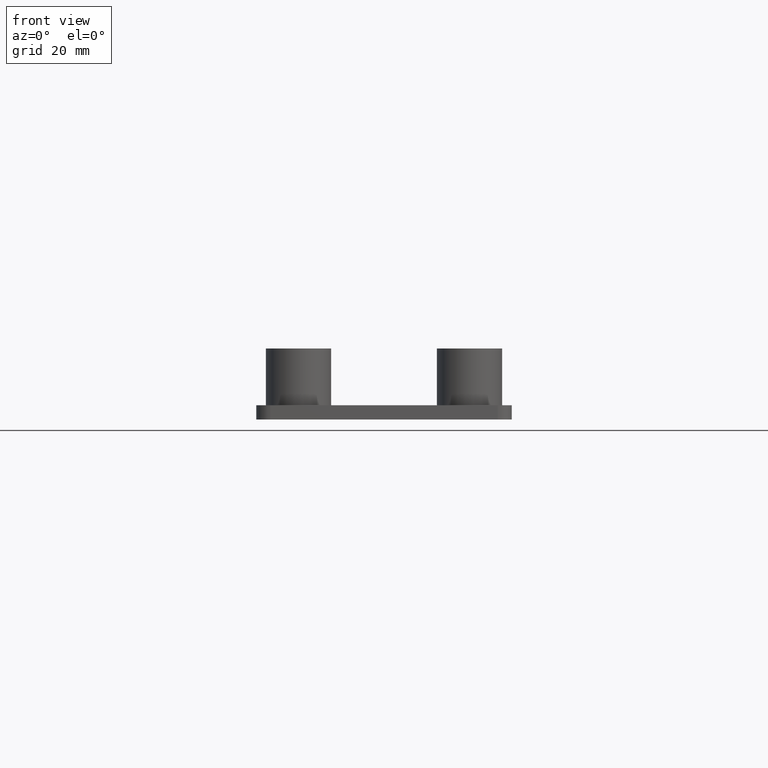
[diagram: clean part render]
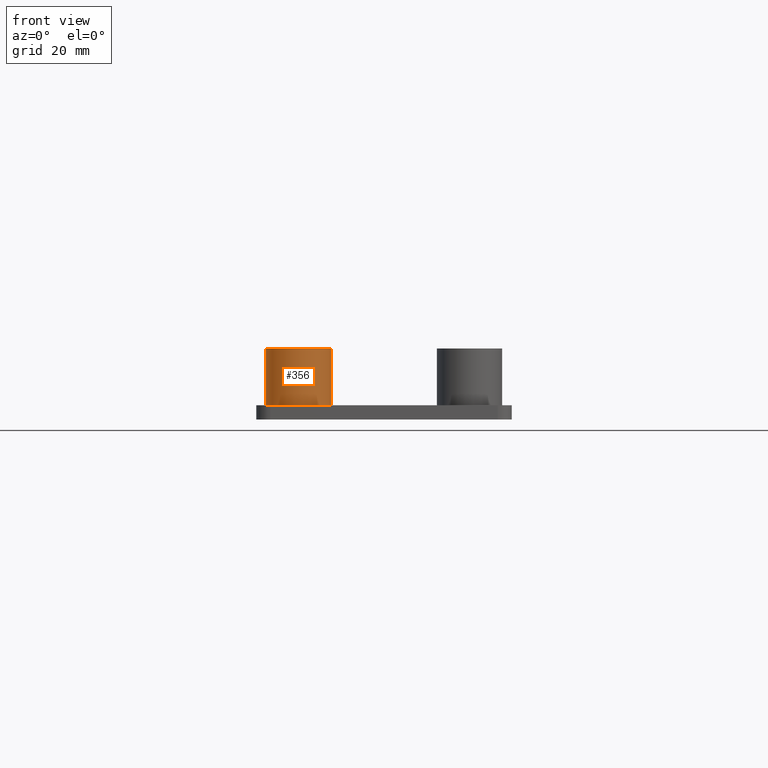
[diagram: same view with one face highlighted and labeled with its STEP entity id]
A machine part, front view. The second image highlights one B-rep face of the part: STEP entity #356.
In plain terms, the highlighted cylindrical surface (bore or boss wall) has radius 5.75 mm, axis along (0, 0, 1).
Its self-contained STEP definition (entity closure, byte-faithful):
#306=CARTESIAN_POINT('',(-37.549998999849322,-52.550044499789919,0.0));
#307=DIRECTION('',(0.0,0.0,1.0));
#308=DIRECTION('',(1.0,0.0,0.0));
#309=AXIS2_PLACEMENT_3D('',#306,#307,#308);
#310=CYLINDRICAL_SURFACE('',#309,5.749999999977001);
#311=CARTESIAN_POINT('',(-43.299998999826322,-52.550044499789919,10.0));
#312=VERTEX_POINT('',#311);
#313=CARTESIAN_POINT('',(-31.799998999872514,-52.550044499789919,10.0));
#314=VERTEX_POINT('',#313);
#315=CARTESIAN_POINT('',(-37.549998999849322,-52.550044499789919,10.0));
#316=DIRECTION('',(0.0,0.0,1.0));
#317=DIRECTION('',(1.0,0.0,0.0));
#318=AXIS2_PLACEMENT_3D('',#315,#316,#317);
#319=CIRCLE('',#318,5.749999999977001);
#320=EDGE_CURVE('',#312,#314,#319,.T.);
#321=ORIENTED_EDGE('',*,*,#320,.F.);
#322=CARTESIAN_POINT('',(-37.549998999849322,-52.550044499789919,10.0));
#323=DIRECTION('',(0.0,0.0,1.0));
#324=DIRECTION('',(1.0,0.0,0.0));
#325=AXIS2_PLACEMENT_3D('',#322,#323,#324);
#326=CIRCLE('',#325,5.749999999977001);
#327=EDGE_CURVE('',#314,#312,#326,.T.);
#328=ORIENTED_EDGE('',*,*,#327,.F.);
#329=CARTESIAN_POINT('',(-31.799998999872514,-52.550044499789919,0.0));
#330=VERTEX_POINT('',#329);
#331=CARTESIAN_POINT('',(-31.799998999872514,-52.550044499789919,0.0));
#332=DIRECTION('',(0.0,0.0,1.0));
#333=VECTOR('',#332,10.0);
#334=LINE('',#331,#333);
#335=EDGE_CURVE('',#330,#314,#334,.T.);
#336=ORIENTED_EDGE('',*,*,#335,.F.);
#337=CARTESIAN_POINT('',(-43.299998999826322,-52.550044499789919,0.0));
#338=VERTEX_POINT('',#337);
#339=CARTESIAN_POINT('',(-37.549998999849322,-52.550044499789919,0.0));
#340=DIRECTION('',(0.0,0.0,1.0));
#341=DIRECTION('',(1.0,0.0,0.0));
#342=AXIS2_PLACEMENT_3D('',#339,#340,#341);
#343=CIRCLE('',#342,5.749999999977001);
#344=EDGE_CURVE('',#330,#338,#343,.T.);
#345=ORIENTED_EDGE('',*,*,#344,.T.);
#346=CARTESIAN_POINT('',(-37.549998999849322,-52.550044499789919,0.0));
#347=DIRECTION('',(0.0,0.0,1.0));
#348=DIRECTION('',(1.0,0.0,0.0));
#349=AXIS2_PLACEMENT_3D('',#346,#347,#348);
#350=CIRCLE('',#349,5.749999999977001);
#351=EDGE_CURVE('',#338,#330,#350,.T.);
#352=ORIENTED_EDGE('',*,*,#351,.T.);
#353=ORIENTED_EDGE('',*,*,#335,.T.);
#354=EDGE_LOOP('',(#321,#328,#336,#345,#352,#353));
#355=FACE_OUTER_BOUND('',#354,.T.);
#356=ADVANCED_FACE('',(#355),#310,.T.);